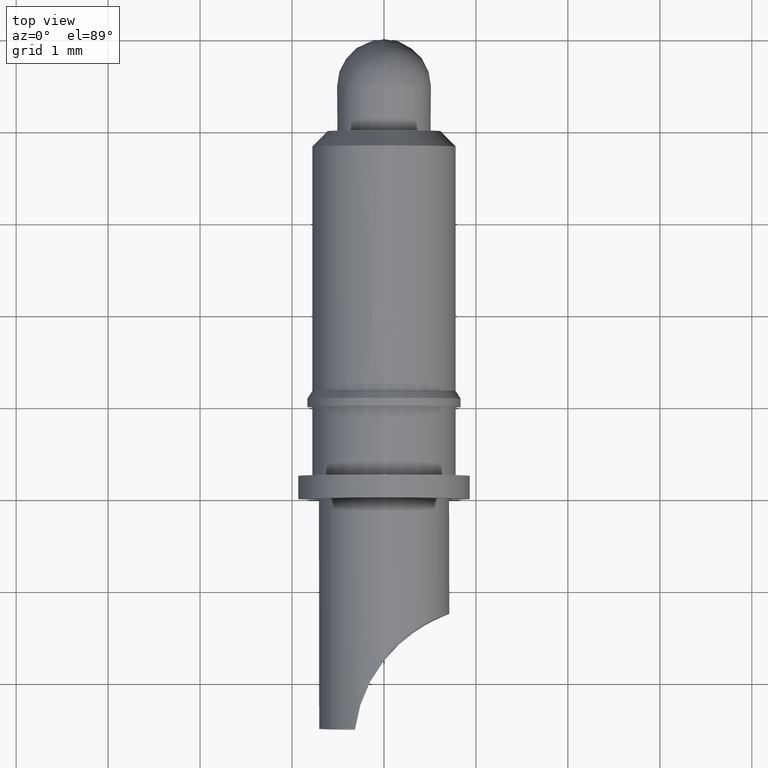
[diagram: clean part render]
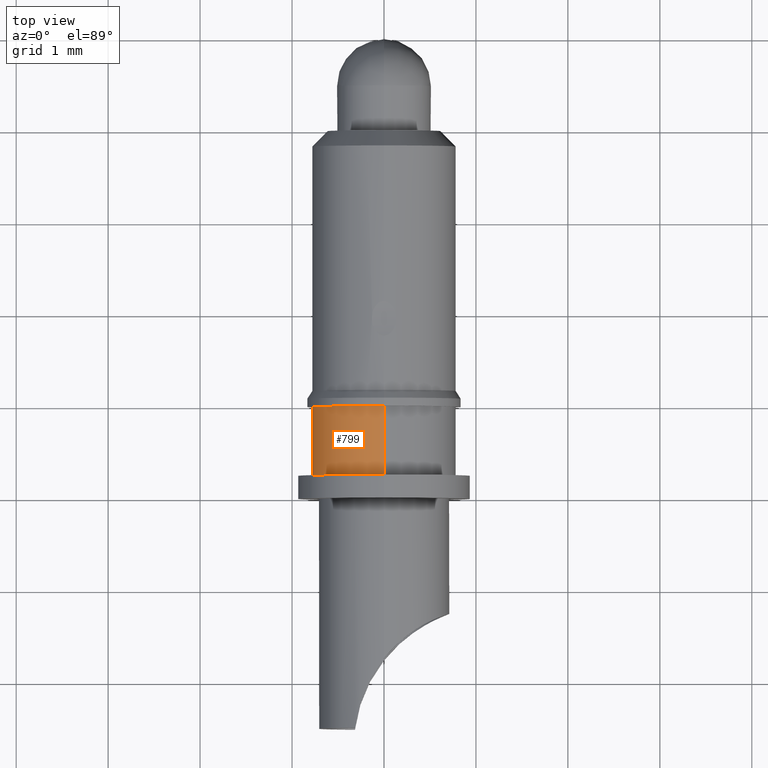
[diagram: same view with one face highlighted and labeled with its STEP entity id]
A machine part, top view. The second image highlights one B-rep face of the part: STEP entity #799.
In plain terms, the highlighted cylindrical surface (partial cylindrical patch) has radius 0.785 mm, axis along (-0, -1, -0).
Its self-contained STEP definition (entity closure, byte-faithful):
#28 = DIRECTION ( 'NONE',  ( -0.0000000000000000000, -1.000000000000000000, -0.0000000000000000000 ) ) ;
#38 = DIRECTION ( 'NONE',  ( 0.0000000000000000000, 0.0000000000000000000, -1.000000000000000000 ) ) ;
#57 = ORIENTED_EDGE ( 'NONE', *, *, #211, .T. ) ;
#63 = ORIENTED_EDGE ( 'NONE', *, *, #731, .T. ) ;
#108 = CARTESIAN_POINT ( 'NONE',  ( 0.0000000000000000000, -7.500000000000000000, -0.7850000000000000300 ) ) ;
#166 = AXIS2_PLACEMENT_3D ( 'NONE', #936, #855, #1025 ) ;
#169 = VERTEX_POINT ( 'NONE', #403 ) ;
#173 = ORIENTED_EDGE ( 'NONE', *, *, #450, .F. ) ;
#175 = CARTESIAN_POINT ( 'NONE',  ( 0.0000000000000000000, -4.000000000000000000, 0.0000000000000000000 ) ) ;
#211 = EDGE_CURVE ( 'NONE', #911, #212, #1077, .T. ) ;
#212 = VERTEX_POINT ( 'NONE', #319 ) ;
#241 = ORIENTED_EDGE ( 'NONE', *, *, #806, .F. ) ;
#319 = CARTESIAN_POINT ( 'NONE',  ( 0.0000000000000000000, -4.000000000000000000, -0.7850000000000001400 ) ) ;
#403 = CARTESIAN_POINT ( 'NONE',  ( 0.0000000000000000000, -4.750000000000000000, -0.7849999999999999200 ) ) ;
#419 = CIRCLE ( 'NONE', #166, 0.7849999999999999200 ) ;
#450 = EDGE_CURVE ( 'NONE', #911, #937, #460, .T. ) ;
#460 = LINE ( 'NONE', #887, #639 ) ;
#472 = DIRECTION ( 'NONE',  ( -0.0000000000000000000, -1.000000000000000000, -0.0000000000000000000 ) ) ;
#500 = DIRECTION ( 'NONE',  ( -0.0000000000000000000, -1.000000000000000000, -0.0000000000000000000 ) ) ;
#505 = FACE_OUTER_BOUND ( 'NONE', #1026, .T. ) ;
#524 = CARTESIAN_POINT ( 'NONE',  ( 0.0000000000000000000, -7.500000000000000000, 0.0000000000000000000 ) ) ;
#543 = CARTESIAN_POINT ( 'NONE',  ( 9.613477373306724800E-017, -4.000000000000000000, 0.7850000000000002500 ) ) ;
#558 = LINE ( 'NONE', #108, #958 ) ;
#579 = CYLINDRICAL_SURFACE ( 'NONE', #755, 0.7850000000000000300 ) ;
#627 = CARTESIAN_POINT ( 'NONE',  ( 9.613477373306722300E-017, -4.750000000000000000, 0.7849999999999999200 ) ) ;
#639 = VECTOR ( 'NONE', #472, 1000.000000000000000 ) ;
#731 = EDGE_CURVE ( 'NONE', #212, #169, #558, .T. ) ;
#755 = AXIS2_PLACEMENT_3D ( 'NONE', #524, #28, #38 ) ;
#784 = AXIS2_PLACEMENT_3D ( 'NONE', #175, #1001, #919 ) ;
#799 = ADVANCED_FACE ( 'NONE', ( #505 ), #579, .T. ) ;
#806 = EDGE_CURVE ( 'NONE', #937, #169, #419, .T. ) ;
#855 = DIRECTION ( 'NONE',  ( -0.0000000000000000000, -1.000000000000000000, -0.0000000000000000000 ) ) ;
#887 = CARTESIAN_POINT ( 'NONE',  ( 9.613477373306722300E-017, -7.500000000000000000, 0.7850000000000000300 ) ) ;
#911 = VERTEX_POINT ( 'NONE', #543 ) ;
#919 = DIRECTION ( 'NONE',  ( 0.0000000000000000000, 0.0000000000000000000, -1.000000000000000000 ) ) ;
#936 = CARTESIAN_POINT ( 'NONE',  ( 0.0000000000000000000, -4.750000000000000000, 0.0000000000000000000 ) ) ;
#937 = VERTEX_POINT ( 'NONE', #627 ) ;
#958 = VECTOR ( 'NONE', #500, 1000.000000000000000 ) ;
#1001 = DIRECTION ( 'NONE',  ( -0.0000000000000000000, -1.000000000000000000, -0.0000000000000000000 ) ) ;
#1025 = DIRECTION ( 'NONE',  ( 0.0000000000000000000, 0.0000000000000000000, -1.000000000000000000 ) ) ;
#1026 = EDGE_LOOP ( 'NONE', ( #173, #57, #63, #241 ) ) ;
#1077 = CIRCLE ( 'NONE', #784, 0.7850000000000001400 ) ;